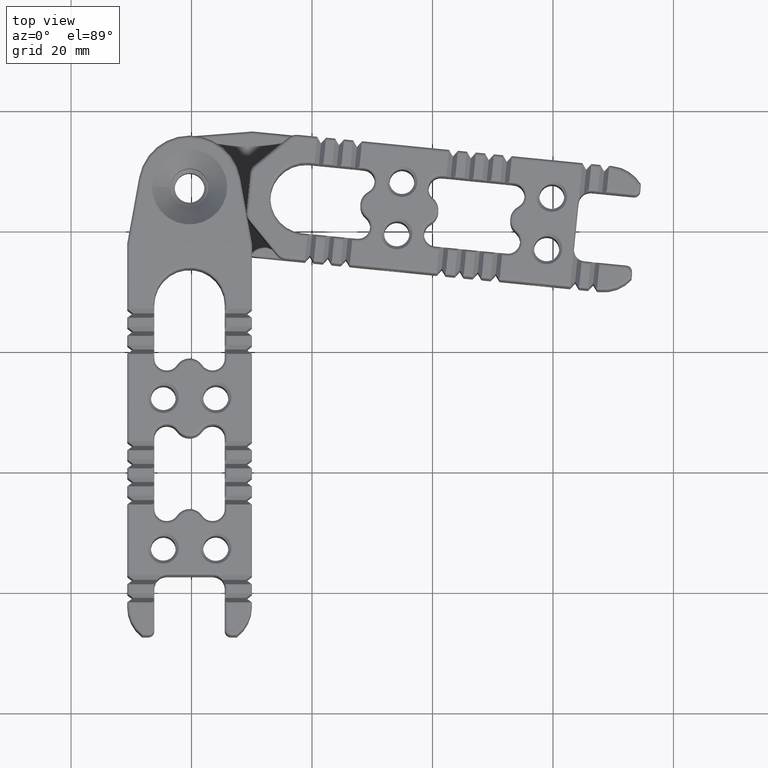
[diagram: clean part render]
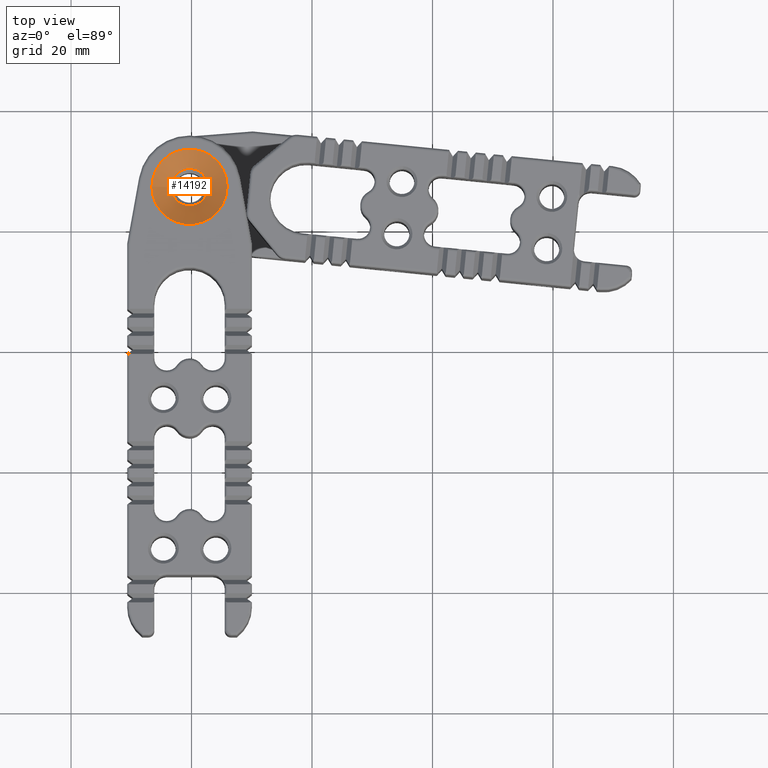
[diagram: same view with one face highlighted and labeled with its STEP entity id]
A machine part, top view. The second image highlights one B-rep face of the part: STEP entity #14192.
In plain terms, the highlighted conical surface has half-angle 45 deg.
Its self-contained STEP definition (entity closure, byte-faithful):
#80=CONICAL_SURFACE('',#15297,4.675,0.7853981634);
#225=CIRCLE('',#15040,6.25);
#226=CIRCLE('',#15041,6.25);
#278=CIRCLE('',#15241,3.1);
#279=CIRCLE('',#15242,3.1);
#1137=FACE_OUTER_BOUND('',#1956,.T.);
#1956=EDGE_LOOP('',(#9930,#9931,#9932,#9933,#9934,#9935));
#2993=LINE('',#22993,#4197);
#4197=VECTOR('',#17735,4.675);
#5737=VERTEX_POINT('',#21856);
#5738=VERTEX_POINT('',#21857);
#6007=VERTEX_POINT('',#22851);
#6008=VERTEX_POINT('',#22853);
#7157=EDGE_CURVE('',#5737,#5738,#225,.T.);
#7158=EDGE_CURVE('',#5738,#5737,#226,.T.);
#7493=EDGE_CURVE('',#6007,#6008,#278,.T.);
#7494=EDGE_CURVE('',#6008,#6007,#279,.T.);
#7567=EDGE_CURVE('',#6007,#5738,#2993,.T.);
#9930=ORIENTED_EDGE('',*,*,#7494,.F.);
#9931=ORIENTED_EDGE('',*,*,#7493,.F.);
#9932=ORIENTED_EDGE('',*,*,#7567,.T.);
#9933=ORIENTED_EDGE('',*,*,#7157,.F.);
#9934=ORIENTED_EDGE('',*,*,#7158,.F.);
#9935=ORIENTED_EDGE('',*,*,#7567,.F.);
#14192=ADVANCED_FACE('',(#1137),#80,.F.);
#15040=AXIS2_PLACEMENT_3D('',#21858,#16986,#16987);
#15041=AXIS2_PLACEMENT_3D('',#21859,#16988,#16989);
#15241=AXIS2_PLACEMENT_3D('',#22854,#17581,#17582);
#15242=AXIS2_PLACEMENT_3D('',#22855,#17583,#17584);
#15297=AXIS2_PLACEMENT_3D('',#22992,#17733,#17734);
#16986=DIRECTION('center_axis',(0.,0.,-1.));
#16987=DIRECTION('ref_axis',(1.,0.,0.));
#16988=DIRECTION('center_axis',(0.,0.,-1.));
#16989=DIRECTION('ref_axis',(1.,0.,0.));
#17581=DIRECTION('center_axis',(0.,0.,1.));
#17582=DIRECTION('ref_axis',(1.,0.,0.));
#17583=DIRECTION('center_axis',(0.,0.,1.));
#17584=DIRECTION('ref_axis',(1.,0.,0.));
#17733=DIRECTION('center_axis',(0.,0.,1.));
#17734=DIRECTION('ref_axis',(1.,0.,0.));
#17735=DIRECTION('',(-0.707106781188352,-8.65956056237703E-17,0.707106781184743));
#21856=CARTESIAN_POINT('',(-14.0800087747087,-12.8725456785213,17.8074630961874));
#21857=CARTESIAN_POINT('',(-26.5800087747127,-12.8725456785213,17.8074630961834));
#21858=CARTESIAN_POINT('Origin',(-20.3300087747087,-12.8725456785213,17.8074630961874));
#21859=CARTESIAN_POINT('Origin',(-20.3300087747087,-12.8725456785213,17.8074630961874));
#22851=CARTESIAN_POINT('',(-23.4300087747087,-12.8725456785213,14.6574630961874));
#22853=CARTESIAN_POINT('',(-17.2300087747087,-12.8725456785213,14.6574630961874));
#22854=CARTESIAN_POINT('Origin',(-20.3300087747087,-12.8725456785213,14.6574630961874));
#22855=CARTESIAN_POINT('Origin',(-20.3300087747087,-12.8725456785213,14.6574630961874));
#22992=CARTESIAN_POINT('Origin',(-20.3300087747087,-12.8725456785213,16.2324630961874));
#22993=CARTESIAN_POINT('',(-25.0050087747087,-12.8725456785213,16.2324630961874));